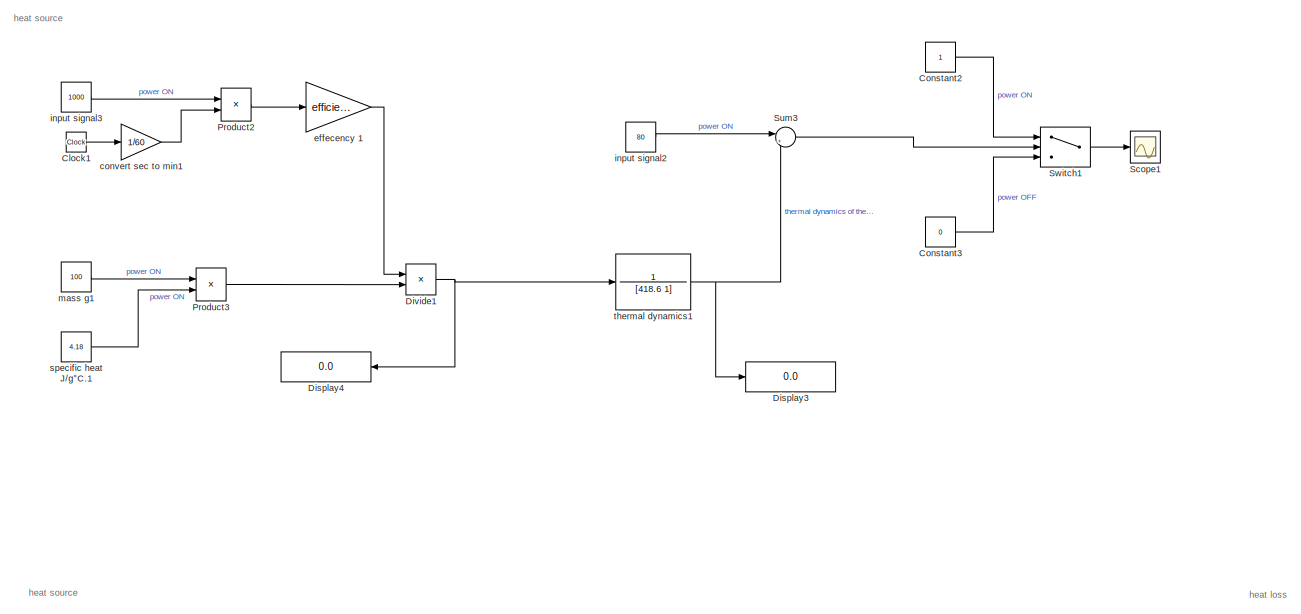
[diagram: root canvas - part 1/2, full width, top band]
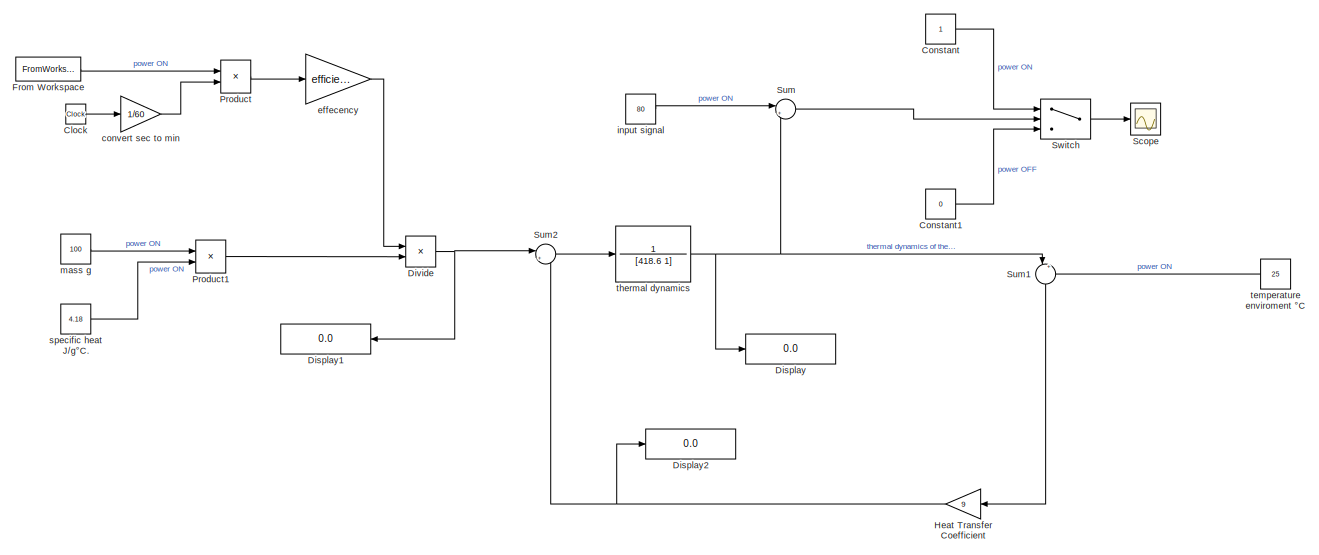
[diagram: root canvas - part 2/2, full width, bottom band]
MODEL slx_126e10897d76
KIND model
CONFIG AbsTol = auto
CONFIG EnableMultiTasking = off
CONFIG FixedStep = auto
CONFIG MaxStep = auto
CONFIG MinStep = auto
CONFIG RelTol = 1e-3
CONFIG SampleTimeConstraint = Unconstrained
CONFIG SolverName = VariableStepAuto
CONFIG StartTime = 0.0
CONFIG StopTime = 3000
BLOCK [Clock] Clock
BLOCK [Clock] Clock1
BLOCK [Constant] Constant
BLOCK [Constant] Constant1
  Value = 0
BLOCK [Constant] Constant2
BLOCK [Constant] Constant3
  Value = 0
BLOCK [Display] Display
  Decimation = 1
BLOCK [Display] Display1
  Decimation = 1
  NameLocation = top
BLOCK [Display] Display2
  Decimation = 1
BLOCK [Display] Display3
  Decimation = 1
BLOCK [Display] Display4
  Decimation = 1
  NameLocation = top
BLOCK [Product] Divide
  Inputs = */
BLOCK [Product] Divide1
  Inputs = */
BLOCK [FromWorkspace] From Workspace
  SampleTime = -1
  VariableName = data
BLOCK [Gain] Heat Transfer Coefficient 
  Gain = 9
  NameLocation = top
BLOCK [Product] Product
BLOCK [Product] Product1
BLOCK [Product] Product2
BLOCK [Product] Product3
BLOCK [Scope] Scope
  Floating = off
  NumInputPorts = 1
  ScopeSpecificationString = Simulink.scopes.TimeScopeBlockCfg('CurrentConfiguration', extmgr.ConfigurationSet(extmgr.Configuration('Core','General UI',true),extmgr.Configuration('Core','Source UI',true),extmgr.Configuration('Sources','WiredSimulink',true),extmgr.Configuration('Visuals','Time Domain',true,'SerializedDisplays',{struct('MinYLimReal','-0.125','MaxYLimReal','1.125','YLabelReal','','MinYLimMag','0.00000','MaxYLimM...<+1502ch>
BLOCK [Scope] Scope1
  Floating = off
  NumInputPorts = 1
  ScopeSpecificationString = Simulink.scopes.TimeScopeBlockCfg('CurrentConfiguration', extmgr.ConfigurationSet(extmgr.Configuration('Core','General UI',true),extmgr.Configuration('Core','Source UI',true),extmgr.Configuration('Sources','WiredSimulink',true,'DataLoggingVariableName','ScopeData1'),extmgr.Configuration('Visuals','Time Domain',true,'SerializedDisplays',{struct('MinYLimReal','-0.125','MaxYLimReal','1.125','YLabelRe...<+1542ch>
BLOCK [Sum] Sum
  Inputs = |+-
BLOCK [Sum] Sum1
  Inputs = |+-
  NameLocation = left
BLOCK [Sum] Sum2
  Inputs = |+-
BLOCK [Sum] Sum3
  Inputs = |+-
BLOCK [Switch] Switch
  Criteria = u2 > Threshold
  InputSameDT = off
  SaturateOnIntegerOverflow = off
  Threshold = 5
BLOCK [Switch] Switch1
  Criteria = u2 > Threshold
  InputSameDT = off
  SaturateOnIntegerOverflow = off
  Threshold = 5
BLOCK [Gain] convert sec to min
  Gain = 1/60
BLOCK [Gain] convert sec to min1
  Gain = 1/60
BLOCK [Gain] effecency 
  Gain = efficiency
BLOCK [Gain] effecency 1
  Gain = efficiency
BLOCK [Constant] input signal
  Value = 80
BLOCK [Constant] input signal2
  Value = 80
BLOCK [Constant] input signal3
  Value = 1000
BLOCK [Constant] mass g
  Value = 100
BLOCK [Constant] mass g1
  Value = 100
BLOCK [Constant] specific heat   J//g°C.
  Value = 4.18
BLOCK [Constant] specific heat   J//g°C.1
  Value = 4.18
BLOCK [Constant] temperature enviroment °C
  NameLocation = top
  Value = 25
BLOCK [TransferFcn] thermal dynamics
  Denominator = [418.6 1]
  Numerator = 1
BLOCK [TransferFcn] thermal dynamics1
  Denominator = [418.6 1]
  Numerator = 1
ANNOTATION (root): heat loss
ANNOTATION (root): heat source
LINE Clock1:1 -> convert sec to min1:1
LINE Clock:1 -> convert sec to min:1
LINE Constant1:1 -> Switch:3
LINE Constant2:1 -> Switch1:1
LINE Constant3:1 -> Switch1:3
LINE Constant:1 -> Switch:1
NET Divide1:1 -> Display4:1, thermal dynamics1:1
NET Divide:1 -> Display1:1, Sum2:1
LINE From Workspace:1 -> Product:1
NET Heat Transfer Coefficient :1 -> Display2:1, Sum2:2
LINE Product1:1 -> Divide:2
LINE Product2:1 -> effecency 1:1
LINE Product3:1 -> Divide1:2
LINE Product:1 -> effecency :1
LINE Sum1:1 -> Heat Transfer Coefficient :1
LINE Sum2:1 -> thermal dynamics:1
LINE Sum3:1 -> Switch1:2
LINE Sum:1 -> Switch:2
LINE Switch1:1 -> Scope1:1
LINE Switch:1 -> Scope:1
LINE convert sec to min1:1 -> Product2:2
LINE convert sec to min:1 -> Product:2
LINE effecency 1:1 -> Divide1:1
LINE effecency :1 -> Divide:1
LINE input signal2:1 -> Sum3:1
LINE input signal3:1 -> Product2:1
LINE input signal:1 -> Sum:1
LINE mass g1:1 -> Product3:1
LINE mass g:1 -> Product1:1
LINE specific heat   J//g°C.1:1 -> Product3:2
LINE specific heat   J//g°C.:1 -> Product1:2
LINE temperature enviroment °C:1 -> Sum1:2
NET thermal dynamics1:1 -> Display3:1, Sum3:2
NET thermal dynamics:1 -> Display:1, Sum1:1, Sum:2
note: NET lines group one-source signal fan-out (src -> all destinations, sorted); 1:1 wires keep LINE
